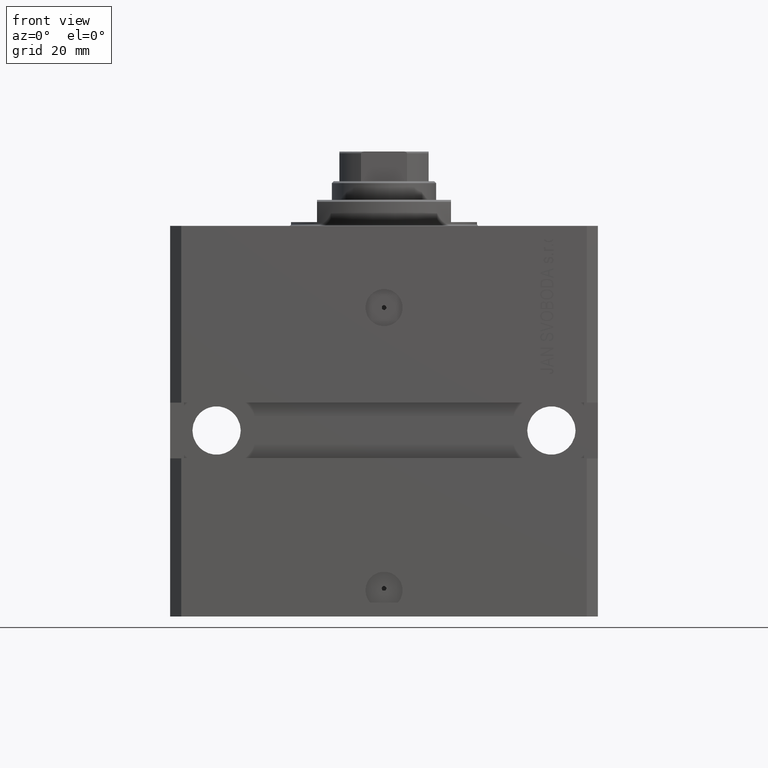
[diagram: clean part render]
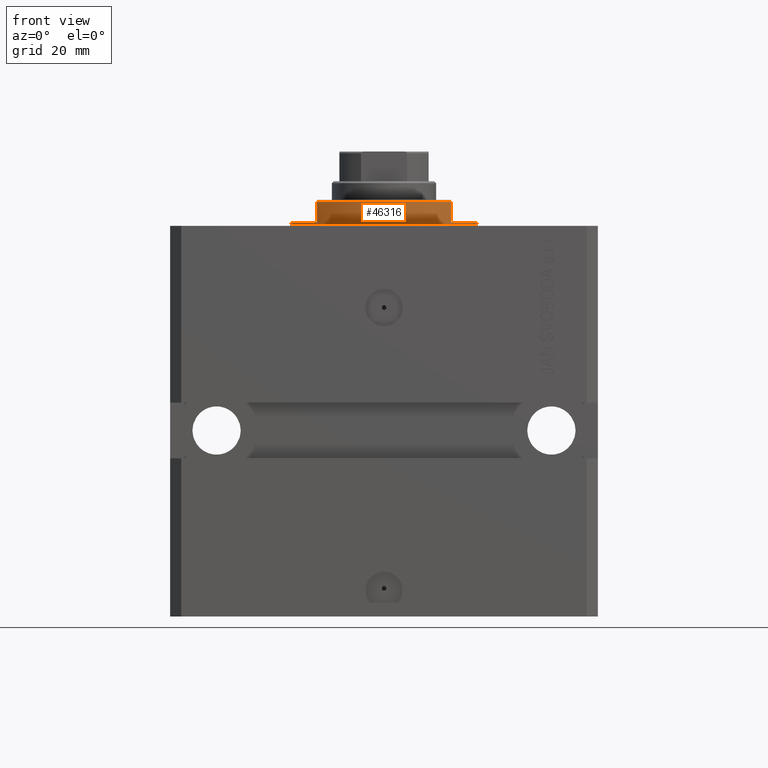
[diagram: same view with one face highlighted and labeled with its STEP entity id]
A machine part, front view. The second image highlights one B-rep face of the part: STEP entity #46316.
In plain terms, the highlighted cylindrical surface (partial cylindrical patch) has radius 25 mm, axis along (0, 0, -1).
Its self-contained STEP definition (entity closure, byte-faithful):
#1025 = CARTESIAN_POINT ( 'NONE',  ( 18.00000000000000000, -17.34935157289747920, -1.000000000000000000 ) ) ;
#1824 = FACE_OUTER_BOUND ( 'NONE', #35421, .T. ) ;
#1827 = VERTEX_POINT ( 'NONE', #14492 ) ;
#2318 = EDGE_CURVE ( 'NONE', #10350, #46068, #5454, .T. ) ;
#3731 = LINE ( 'NONE', #38175, #16458 ) ;
#4199 = ORIENTED_EDGE ( 'NONE', *, *, #26159, .T. ) ;
#4304 = DIRECTION ( 'NONE',  ( 0.000000000000000000, 0.000000000000000000, -1.000000000000000000 ) ) ;
#5454 = CIRCLE ( 'NONE', #26659, 25.00000000000000000 ) ;
#8546 = ORIENTED_EDGE ( 'NONE', *, *, #9079, .F. ) ;
#9073 = CARTESIAN_POINT ( 'NONE',  ( -25.00000000000000000, 3.061616997868383043E-15, -1.000000000000000000 ) ) ;
#9079 = EDGE_CURVE ( 'NONE', #11462, #40253, #10363, .T. ) ;
#10350 = VERTEX_POINT ( 'NONE', #42034 ) ;
#10363 = CIRCLE ( 'NONE', #22148, 25.00000000000000000 ) ;
#10947 = DIRECTION ( 'NONE',  ( 0.000000000000000000, 0.000000000000000000, 1.000000000000000000 ) ) ;
#10981 = CARTESIAN_POINT ( 'NONE',  ( 25.00000000000000000, 0.000000000000000000, -7.000000000000000000 ) ) ;
#11462 = VERTEX_POINT ( 'NONE', #25542 ) ;
#11584 = CIRCLE ( 'NONE', #22577, 25.00000000000000000 ) ;
#12161 = CARTESIAN_POINT ( 'NONE',  ( 18.00000000000000000, -17.34935157289747920, -6.499999999999958256 ) ) ;
#12750 = CARTESIAN_POINT ( 'NONE',  ( -18.00000000000000000, -17.34935157289747920, -7.000000000000000000 ) ) ;
#13127 = EDGE_CURVE ( 'NONE', #32794, #13763, #19021, .T. ) ;
#13556 = AXIS2_PLACEMENT_3D ( 'NONE', #26447, #10947, #26924 ) ;
#13763 = VERTEX_POINT ( 'NONE', #12161 ) ;
#14448 = DIRECTION ( 'NONE',  ( 0.000000000000000000, 0.000000000000000000, -1.000000000000000000 ) ) ;
#14492 = CARTESIAN_POINT ( 'NONE',  ( -18.00000000000000000, -17.34935157289747920, -1.000000000000000000 ) ) ;
#15836 = DIRECTION ( 'NONE',  ( 0.000000000000000000, 0.000000000000000000, -1.000000000000000000 ) ) ;
#16458 = VECTOR ( 'NONE', #34467, 1000.000000000000000 ) ;
#16543 = DIRECTION ( 'NONE',  ( 1.000000000000000000, 0.000000000000000000, 0.000000000000000000 ) ) ;
#16764 = CARTESIAN_POINT ( 'NONE',  ( -18.00000000000000000, -17.34935157289747920, -6.499999999999956479 ) ) ;
#17792 = CYLINDRICAL_SURFACE ( 'NONE', #48090, 25.00000000000000000 ) ;
#18619 = DIRECTION ( 'NONE',  ( -1.000000000000000000, 0.000000000000000000, 0.000000000000000000 ) ) ;
#18907 = ORIENTED_EDGE ( 'NONE', *, *, #2318, .T. ) ;
#19021 = CIRCLE ( 'NONE', #13556, 25.00000000000000000 ) ;
#19506 = CARTESIAN_POINT ( 'NONE',  ( 0.000000000000000000, 0.000000000000000000, -0.4999999999999995559 ) ) ;
#20228 = DIRECTION ( 'NONE',  ( -0.000000000000000000, -0.000000000000000000, -1.000000000000000000 ) ) ;
#22148 = AXIS2_PLACEMENT_3D ( 'NONE', #26493, #14448, #18619 ) ;
#22577 = AXIS2_PLACEMENT_3D ( 'NONE', #28126, #15836, #38998 ) ;
#25542 = CARTESIAN_POINT ( 'NONE',  ( 25.00000000000000000, 0.000000000000000000, -1.000000000000000000 ) ) ;
#26143 = VERTEX_POINT ( 'NONE', #9073 ) ;
#26159 = EDGE_CURVE ( 'NONE', #1827, #32794, #27031, .T. ) ;
#26447 = CARTESIAN_POINT ( 'NONE',  ( 0.000000000000000000, 0.000000000000000000, -6.499999999999958256 ) ) ;
#26493 = CARTESIAN_POINT ( 'NONE',  ( 0.000000000000000000, 0.000000000000000000, -1.000000000000000000 ) ) ;
#26659 = AXIS2_PLACEMENT_3D ( 'NONE', #19506, #20228, #16543 ) ;
#26924 = DIRECTION ( 'NONE',  ( -1.000000000000000000, 0.000000000000000000, 0.000000000000000000 ) ) ;
#27031 = LINE ( 'NONE', #12750, #42969 ) ;
#28126 = CARTESIAN_POINT ( 'NONE',  ( 0.000000000000000000, 0.000000000000000000, -1.000000000000000000 ) ) ;
#28891 = EDGE_CURVE ( 'NONE', #40253, #13763, #45193, .T. ) ;
#30155 = CARTESIAN_POINT ( 'NONE',  ( 18.00000000000000000, -17.34935157289747920, -7.000000000000000000 ) ) ;
#31326 = ORIENTED_EDGE ( 'NONE', *, *, #43613, .T. ) ;
#32086 = DIRECTION ( 'NONE',  ( -0.000000000000000000, -0.000000000000000000, 1.000000000000000000 ) ) ;
#32794 = VERTEX_POINT ( 'NONE', #16764 ) ;
#33362 = EDGE_CURVE ( 'NONE', #1827, #26143, #11584, .T. ) ;
#33461 = VECTOR ( 'NONE', #4304, 1000.000000000000000 ) ;
#34467 = DIRECTION ( 'NONE',  ( -0.000000000000000000, -0.000000000000000000, 1.000000000000000000 ) ) ;
#35190 = ORIENTED_EDGE ( 'NONE', *, *, #28891, .F. ) ;
#35421 = EDGE_LOOP ( 'NONE', ( #38371, #47364, #4199, #38553, #35190, #8546, #31326, #18907 ) ) ;
#38175 = CARTESIAN_POINT ( 'NONE',  ( -25.00000000000000000, 3.061616997868383043E-15, -7.000000000000000000 ) ) ;
#38267 = EDGE_CURVE ( 'NONE', #26143, #46068, #3731, .T. ) ;
#38371 = ORIENTED_EDGE ( 'NONE', *, *, #38267, .F. ) ;
#38553 = ORIENTED_EDGE ( 'NONE', *, *, #13127, .T. ) ;
#38998 = DIRECTION ( 'NONE',  ( -1.000000000000000000, 0.000000000000000000, 0.000000000000000000 ) ) ;
#39119 = DIRECTION ( 'NONE',  ( 0.000000000000000000, 0.000000000000000000, -1.000000000000000000 ) ) ;
#40120 = VECTOR ( 'NONE', #44495, 1000.000000000000000 ) ;
#40231 = CARTESIAN_POINT ( 'NONE',  ( 0.000000000000000000, 0.000000000000000000, -7.000000000000000000 ) ) ;
#40253 = VERTEX_POINT ( 'NONE', #1025 ) ;
#42034 = CARTESIAN_POINT ( 'NONE',  ( 25.00000000000000000, 0.000000000000000000, -0.4999999999999995559 ) ) ;
#42969 = VECTOR ( 'NONE', #39119, 1000.000000000000000 ) ;
#43613 = EDGE_CURVE ( 'NONE', #11462, #10350, #44737, .T. ) ;
#44495 = DIRECTION ( 'NONE',  ( -0.000000000000000000, -0.000000000000000000, 1.000000000000000000 ) ) ;
#44737 = LINE ( 'NONE', #10981, #40120 ) ;
#45193 = LINE ( 'NONE', #30155, #33461 ) ;
#46068 = VERTEX_POINT ( 'NONE', #48633 ) ;
#46316 = ADVANCED_FACE ( 'NONE', ( #1824 ), #17792, .T. ) ;
#47364 = ORIENTED_EDGE ( 'NONE', *, *, #33362, .F. ) ;
#47371 = DIRECTION ( 'NONE',  ( 1.000000000000000000, 0.000000000000000000, 0.000000000000000000 ) ) ;
#48090 = AXIS2_PLACEMENT_3D ( 'NONE', #40231, #32086, #47371 ) ;
#48633 = CARTESIAN_POINT ( 'NONE',  ( -25.00000000000000000, 3.061616997868383043E-15, -0.4999999999999995559 ) ) ;